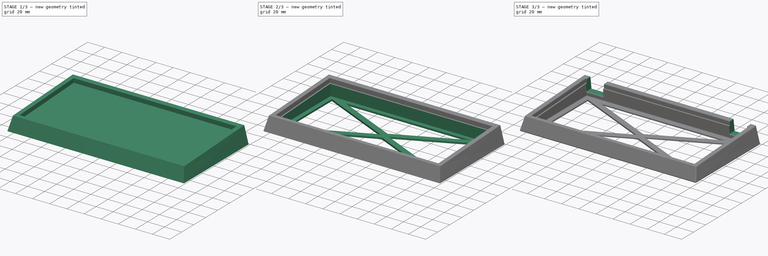
[diagram: build sequence overview — one tinted view per stage of 3, left to right]
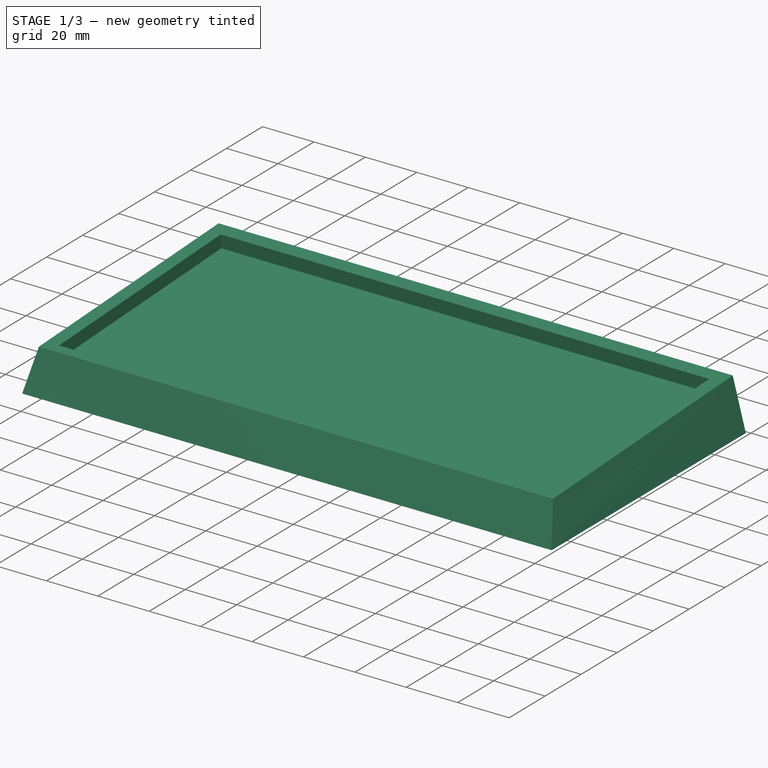
[diagram: stage 1 of 3 — iso view after this stage's code; geometry added in this stage tinted green]
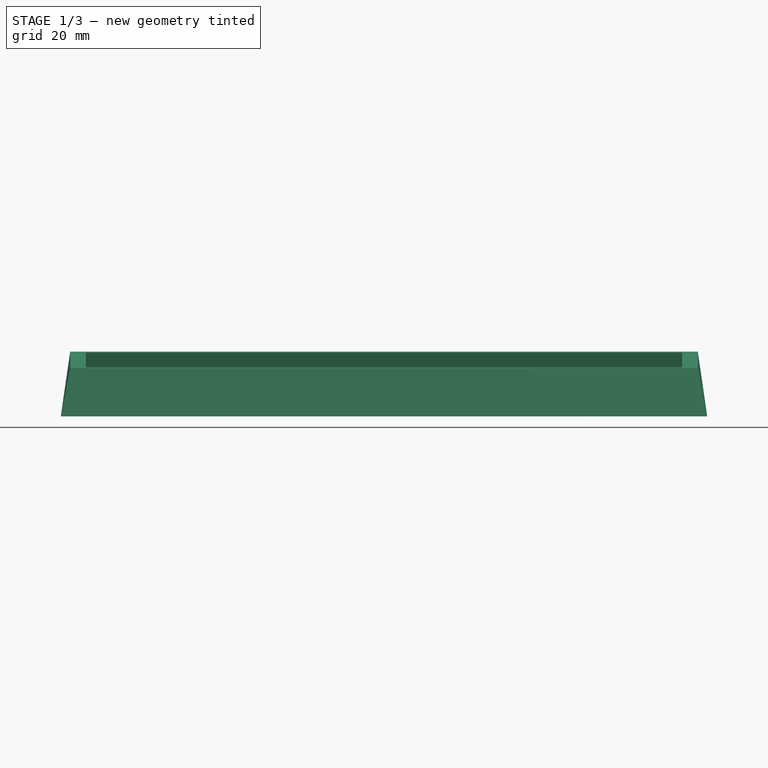
[diagram: stage 1 of 3 — front view after this stage's code; geometry added in this stage tinted green]
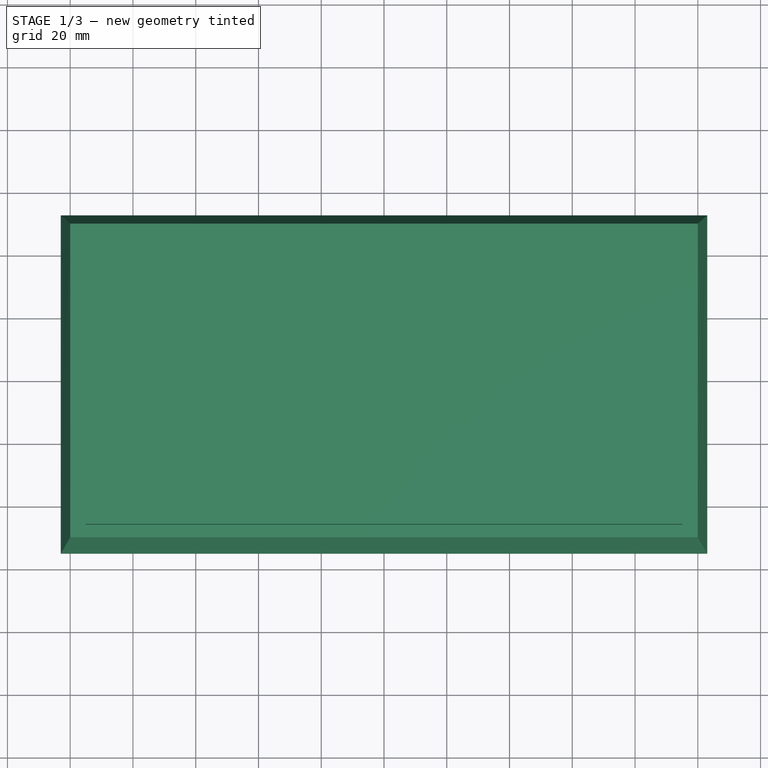
[diagram: stage 1 of 3 — top view after this stage's code; geometry added in this stage tinted green]
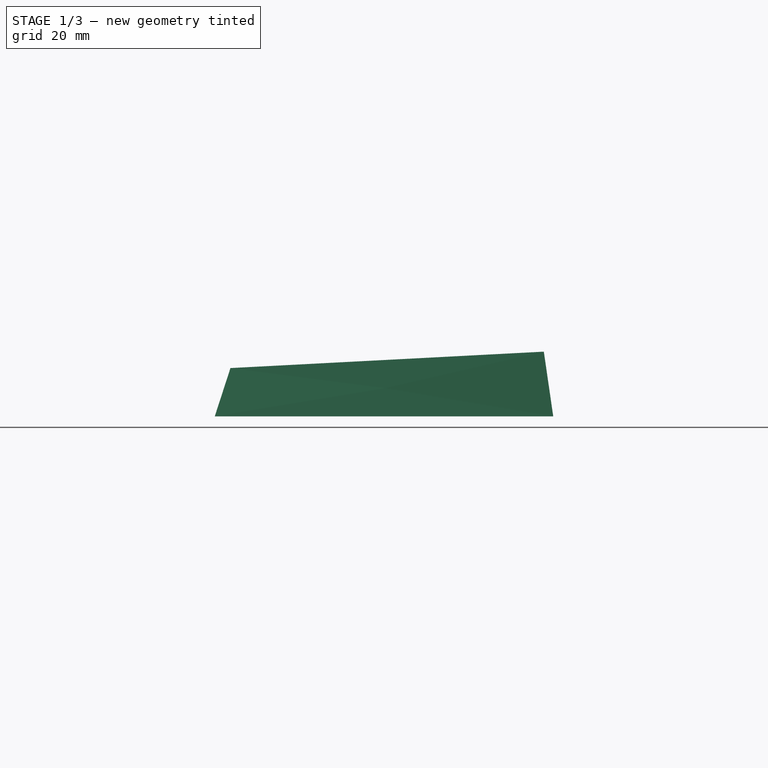
[diagram: stage 1 of 3 — right view after this stage's code; geometry added in this stage tinted green]
FCSTD DOCUMENT  (FreeCAD 0.20R)
Label: keyb-case
License: All rights reserved
LicenseURL: http://en.wikipedia.org/wiki/All_rights_reserved
objects: Sketcher::SketchObject×6, PartDesign::Pocket×4, PartDesign::AdditiveLoft×1, PartDesign::Fillet×1, PartDesign::Body×1
note: 19 computed .brp shape members not serialized (recipe doc carries the construction recipe); baked Part::Feature solids carry a one-line shape summary decoded from their .brp

FEATURE [Sketcher::SketchObject] Sketch
  AttachmentOffset = pos=(0,0,18) rot=(1,0,0;0.05236rad)
  FullyConstrained = true
  MapMode = 5
  Placement = pos=(0,0,18) rot=(1,0,0;0.05236rad)
  Support = -> [XY_Plane]
  sketch-geometry (4):
    g0: LineSegment StartX=-100 StartY=50 StartZ=0 EndX=100 EndY=50 EndZ=0
    g1: LineSegment StartX=100 StartY=50 StartZ=0 EndX=100 EndY=-50 EndZ=0
    g2: LineSegment StartX=100 StartY=-50 StartZ=0 EndX=-100 EndY=-50 EndZ=0
    g3: LineSegment StartX=-100 StartY=-50 StartZ=0 EndX=-100 EndY=50 EndZ=0
  constraints (10):
    c: Coincident(g0,g1)
    c: Coincident(g1,g2)
    c: Coincident(g2,g3)
    c: Coincident(g3,g0)
    c: Horizontal(g2)
    c: Vertical(g1)
    c: Symmetric(g0,g0,g-2)
    c: Symmetric(g0,g2,g-1)
    c: DistanceX(g0,g0) = 200
    c: DistanceY(g3,g3) = 100
FEATURE [Sketcher::SketchObject] Sketch001
  ExternalGeometry = -> [Sketch]
  FullyConstrained = true
  MapMode = 5
  Support = -> [XY_Plane]
  sketch-geometry (4):
    g0: LineSegment StartX=-103 StartY=52.9315 StartZ=0 EndX=103 EndY=52.9315 EndZ=0
    g1: LineSegment StartX=103 StartY=52.9315 StartZ=0 EndX=103 EndY=-54.9315 EndZ=0
    g2: LineSegment StartX=103 StartY=-54.9315 StartZ=0 EndX=-103 EndY=-54.9315 EndZ=0
    g3: LineSegment StartX=-103 StartY=-54.9315 StartZ=0 EndX=-103 EndY=52.9315 EndZ=0
  constraints (12):
    c: Coincident(g0,g1)
    c: Coincident(g1,g2)
    c: Coincident(g2,g3)
    c: Coincident(g3,g0)
    c: Horizontal(g0)
    c: Horizontal(g2)
    c: Vertical(g1)
    c: Vertical(g3)
    c: DistanceY(g-3,g0) = 3
    c: DistanceX(g-3,g0) = 3
    c: DistanceX(g0,g-3) = 3
    c: DistanceY(g1,g-4) = 5
FEATURE [PartDesign::AdditiveLoft] AdditiveLoft
  Closed = false
  Profile = -> Sketch
  Ruled = false
  Sections = -> [Sketch001]
FEATURE [Sketcher::SketchObject] Sketch002
  ExternalGeometry = -> [AdditiveLoft]
  FullyConstrained = true
  MapMode = 5
  Placement = pos=(0,-0.940756,17.9507) rot=(1,0,0;0.05236rad)
  Support = -> [AdditiveLoft]
  sketch-geometry (4):
    g0: LineSegment StartX=-95 StartY=45 StartZ=0 EndX=95 EndY=45 EndZ=0
    g1: LineSegment StartX=95 StartY=45 StartZ=0 EndX=95 EndY=-45 EndZ=0
    g2: LineSegment StartX=95 StartY=-45 StartZ=0 EndX=-95 EndY=-45 EndZ=0
    g3: LineSegment StartX=-95 StartY=-45 StartZ=0 EndX=-95 EndY=45 EndZ=0
  constraints (10):
    c: Coincident(g0,g1)
    c: Coincident(g1,g2)
    c: Coincident(g2,g3)
    c: Coincident(g3,g0)
    c: Horizontal(g2)
    c: Vertical(g1)
    c: Symmetric(g0,g0,g-2)
    c: Symmetric(g0,g2,g-1)
    c: Distance(g0) = 190
    c: Distance(g3) = 90
FEATURE [PartDesign::Pocket] Pocket
  BaseFeature = -> AdditiveLoft
  Direction = (0,0.052336,-0.99863)
  Length = 5
  Length2 = 5
  Profile = -> Sketch002
  ReferenceAxis = -> Sketch002 [N_Axis]
  Type = 0
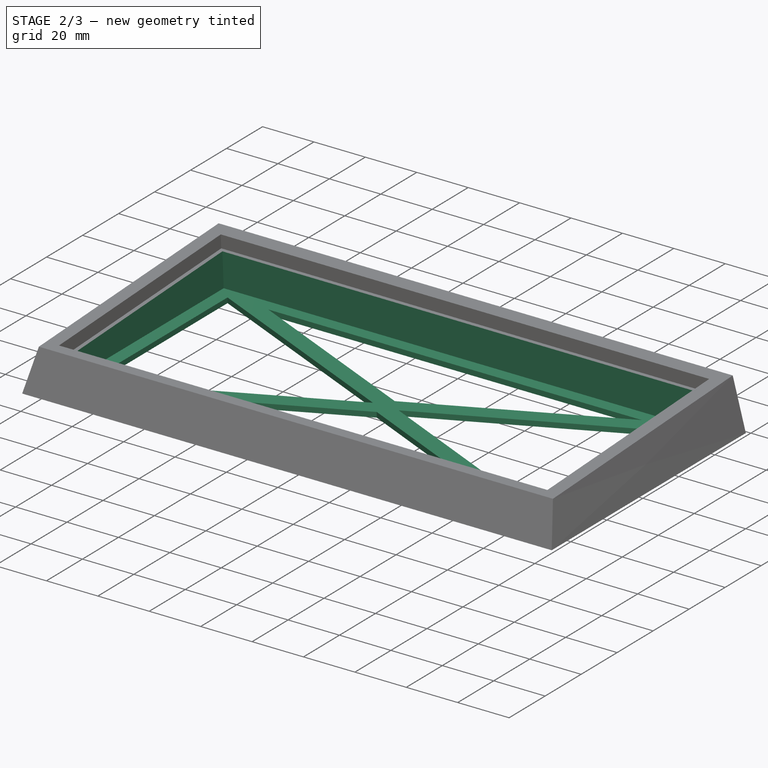
[diagram: stage 2 of 3 — iso view after this stage's code; geometry added in this stage tinted green]
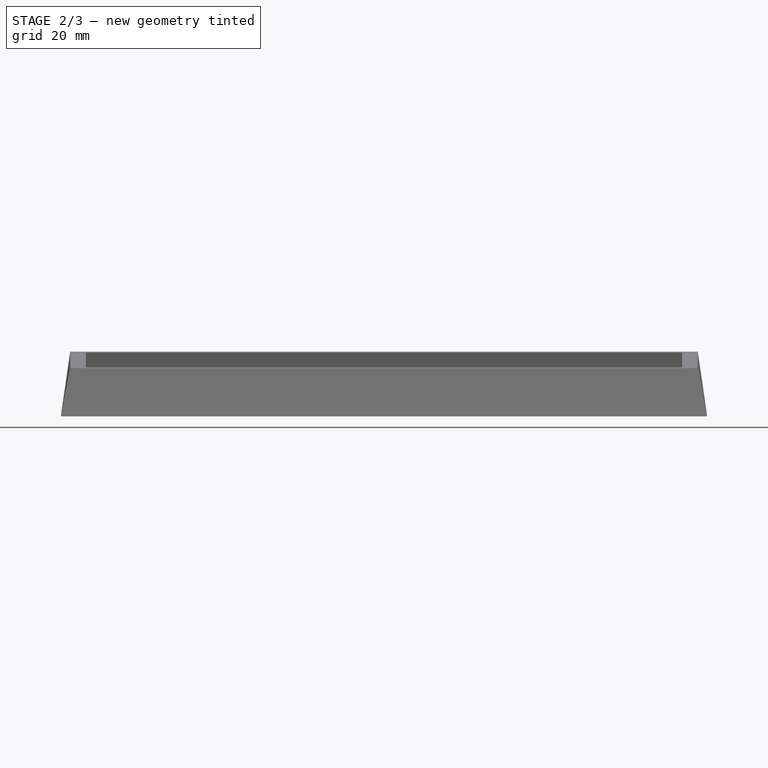
[diagram: stage 2 of 3 — front view after this stage's code; geometry added in this stage tinted green]
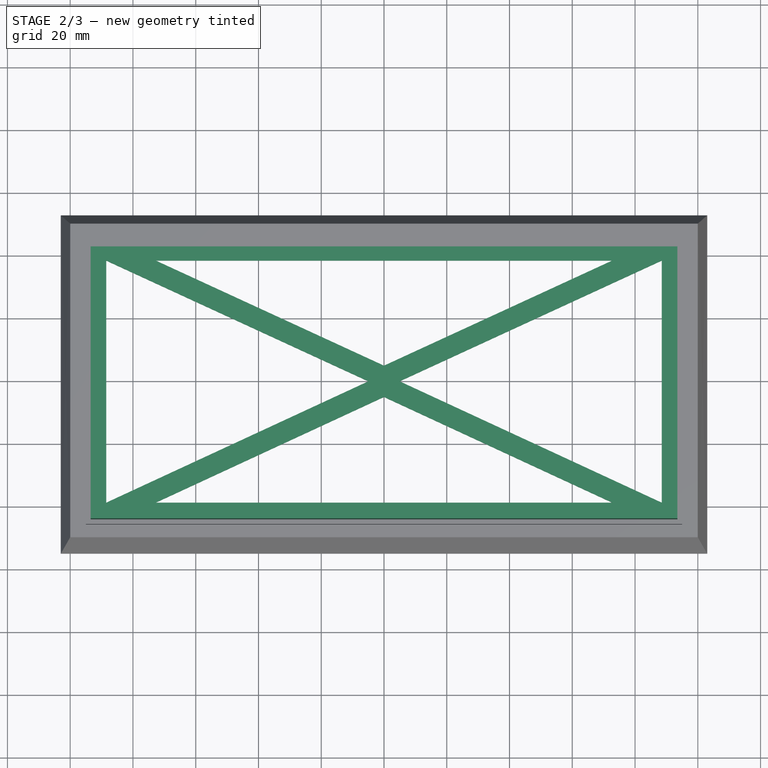
[diagram: stage 2 of 3 — top view after this stage's code; geometry added in this stage tinted green]
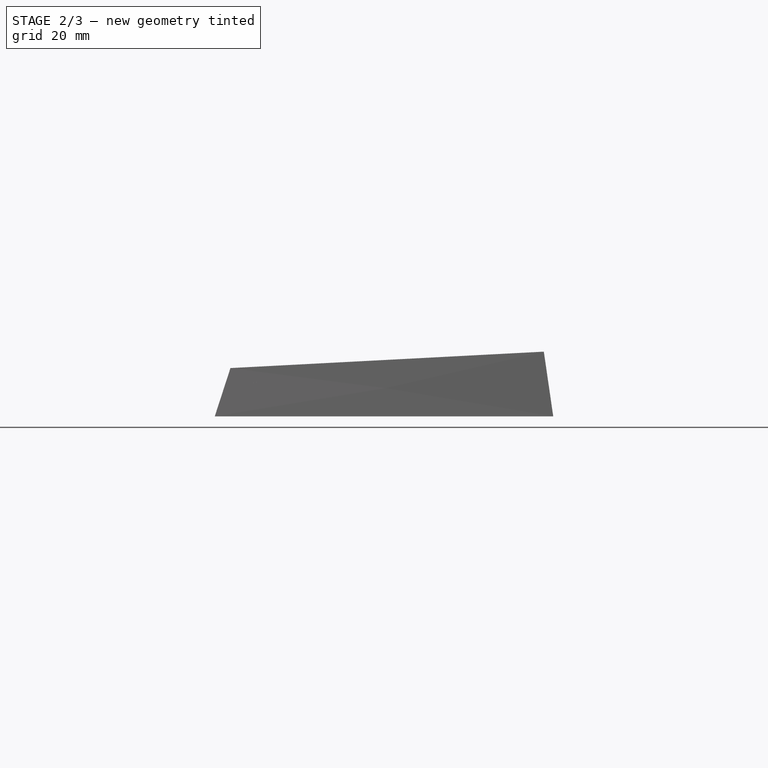
[diagram: stage 2 of 3 — right view after this stage's code; geometry added in this stage tinted green]
FEATURE [Sketcher::SketchObject] Sketch003
  ExternalGeometry = -> [Pocket]
  FullyConstrained = true
  MapMode = 5
  Placement = pos=(0,-0.679076,12.9575) rot=(1,0,0;0.05236rad)
  Support = -> [Pocket]
  sketch-geometry (4):
    g0: LineSegment StartX=-93.5 StartY=43.5 StartZ=0 EndX=93.5 EndY=43.5 EndZ=0
    g1: LineSegment StartX=93.5 StartY=43.5 StartZ=0 EndX=93.5 EndY=-43.5 EndZ=0
    g2: LineSegment StartX=93.5 StartY=-43.5 StartZ=0 EndX=-93.5 EndY=-43.5 EndZ=0
    g3: LineSegment StartX=-93.5 StartY=-43.5 StartZ=0 EndX=-93.5 EndY=43.5 EndZ=0
  constraints (12):
    c: Coincident(g0,g1)
    c: Coincident(g1,g2)
    c: Coincident(g2,g3)
    c: Coincident(g3,g0)
    c: Horizontal(g0)
    c: Horizontal(g2)
    c: Vertical(g1)
    c: Vertical(g3)
    c: DistanceY(g0,g-3) = 1.5
    c: DistanceX(g0,g-3) = 1.5
    c: DistanceX(g-4,g2) = 1.5
    c: DistanceY(g-4,g2) = 1.5
FEATURE [PartDesign::Pocket] Pocket001
  BaseFeature = -> Pocket
  Direction = (0,0.052336,-0.99863)
  Length = 0
  Length2 = 5
  Offset = -2
  Profile = -> Sketch003
  ReferenceAxis = -> Sketch003 [N_Axis]
  Type = 3
  UpToFace = -> Pocket [Face10]
FEATURE [Sketcher::SketchObject] Sketch004
  ExternalGeometry = -> [Pocket001]
  FullyConstrained = true
  MapMode = 5
  Placement = pos=(0,0,1.99726) rot=(0,0,1;0rad)
  Support = -> [Pocket001]
  sketch-geometry (12):
    g0: LineSegment StartX=-72.6432 StartY=38.455 StartZ=0 EndX=0 EndY=5 EndZ=0
    g1: LineSegment StartX=0 StartY=5 StartZ=0 EndX=72.6432 EndY=38.455 EndZ=0
    g2: LineSegment StartX=72.6432 StartY=38.455 StartZ=0 EndX=-72.6432 EndY=38.455 EndZ=0
    g3: LineSegment StartX=0 StartY=-5 StartZ=0 EndX=-72.7019 EndY=-38.6644 EndZ=0
    g4: LineSegment StartX=-72.7019 StartY=-38.6644 StartZ=0 EndX=72.7019 EndY=-38.6644 EndZ=0
    g5: LineSegment StartX=72.7019 StartY=-38.6644 StartZ=0 EndX=0 EndY=-5 EndZ=0
    g6: LineSegment StartX=5 StartY=0 StartZ=0 EndX=88.5 EndY=38.455 EndZ=0
    g7: LineSegment StartX=88.5 StartY=38.455 StartZ=0 EndX=88.5 EndY=-38.6644 EndZ=0
    g8: LineSegment StartX=88.5 StartY=-38.6644 StartZ=0 EndX=5 EndY=0 EndZ=0
    g9: LineSegment StartX=-5 StartY=0 StartZ=0 EndX=-88.5 EndY=38.455 EndZ=0
    g10: LineSegment StartX=-88.5 StartY=38.455 StartZ=0 EndX=-88.5 EndY=-38.6644 EndZ=0
    g11: LineSegment StartX=-88.5 StartY=-38.6644 StartZ=0 EndX=-5 EndY=0 EndZ=0
  constraints (34):
    c: PointOnObject(g0,g-2)
    c: Coincident(g0,g1)
    c: Coincident(g1,g2)
    c: Coincident(g2,g0)
    c: Horizontal(g2)
    c: Coincident(g3,g4)
    c: Horizontal(g4)
    c: Coincident(g4,g5)
    c: Coincident(g5,g3)
    c: PointOnObject(g6,g-1)
    c: Coincident(g6,g7)
    c: Vertical(g7)
    c: Coincident(g7,g8)
    c: Coincident(g8,g6)
    c: Coincident(g9,g10)
    c: Vertical(g10)
    c: Coincident(g10,g11)
    c: Coincident(g11,g9)
    c: Symmetric(g0,g3,g-1)
    c: DistanceY(g3,g0) = 10
    c: Symmetric(g9,g6,g-1)
    c: DistanceX(g9,g6) = 10
    c: Horizontal(g9,g0)
    c: Horizontal(g6,g1)
    c: Horizontal(g10,g3)
    c: Horizontal(g4,g7)
    c: Parallel(g0,g9)
    c: Parallel(g8,g5)
    c: Parallel(g3,g11)
    c: Parallel(g6,g1)
    c: DistanceY(g9,g-4) = 5
    c: DistanceX(g-4,g9) = 5
    c: DistanceX(g6,g-4) = 5
    c: DistanceY(g-3,g7) = 5
FEATURE [PartDesign::Pocket] Pocket002
  BaseFeature = -> Pocket001
  Direction = (0,0,-1)
  Length = 5
  Length2 = 5
  Profile = -> Sketch004
  ReferenceAxis = -> Sketch004 [N_Axis]
  Type = 1
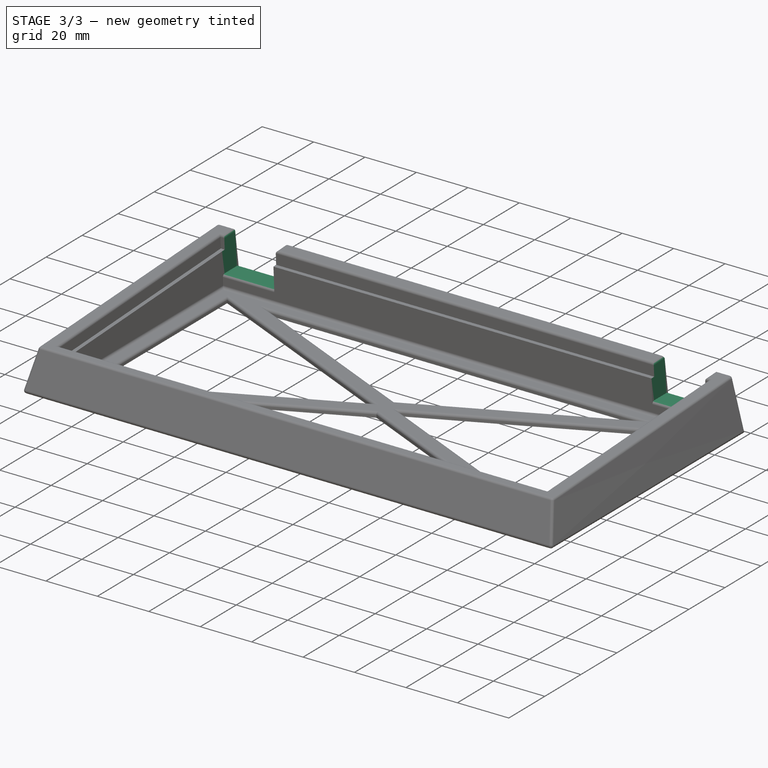
[diagram: stage 3 of 3 — iso view after this stage's code; geometry added in this stage tinted green]
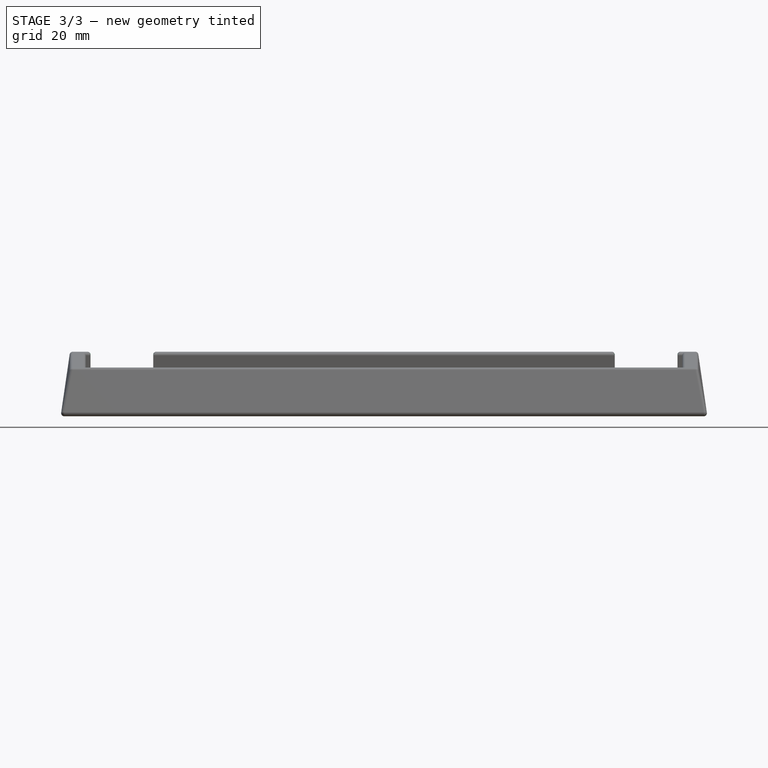
[diagram: stage 3 of 3 — front view after this stage's code; geometry added in this stage tinted green]
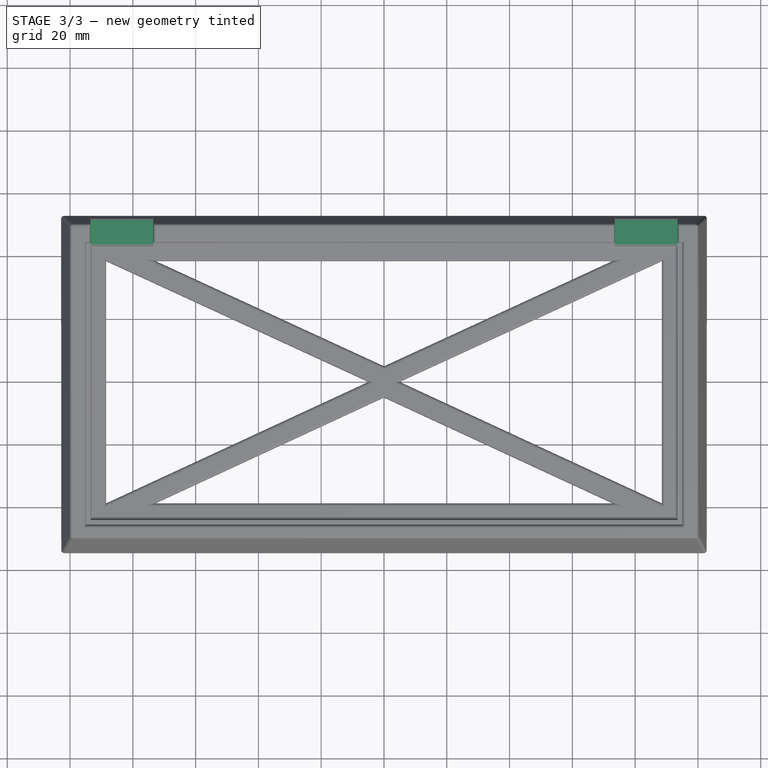
[diagram: stage 3 of 3 — top view after this stage's code; geometry added in this stage tinted green]
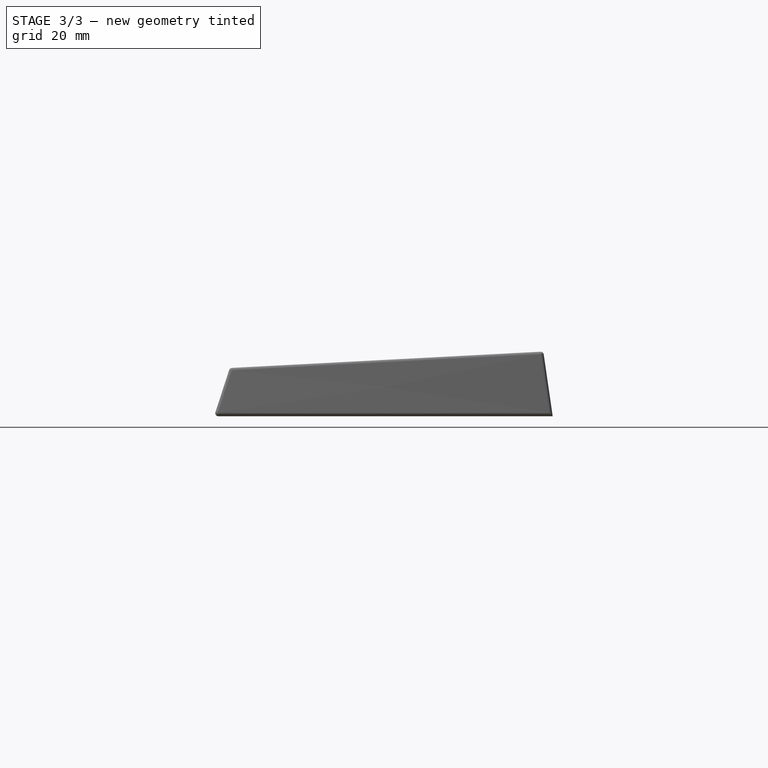
[diagram: stage 3 of 3 — right view after this stage's code; geometry added in this stage tinted green]
FEATURE [Sketcher::SketchObject] Sketch005
  ExternalGeometry = -> [Pocket002]
  FullyConstrained = true
  MapMode = 5
  Placement = pos=(0,-0.940756,17.9507) rot=(1,0,0;0.05236rad)
  Support = -> [Pocket002]
  sketch-geometry (8):
    g0: LineSegment StartX=-93.5 StartY=43.5 StartZ=0 EndX=-73.5 EndY=43.5 EndZ=0
    g1: LineSegment StartX=-73.5 StartY=43.5 StartZ=0 EndX=-73.5 EndY=52.8589 EndZ=0
    g2: LineSegment StartX=-73.5 StartY=52.8589 StartZ=0 EndX=-93.5 EndY=52.8589 EndZ=0
    g3: LineSegment StartX=-93.5 StartY=52.8589 StartZ=0 EndX=-93.5 EndY=43.5 EndZ=0
    g4: LineSegment StartX=93.5 StartY=43.5 StartZ=0 EndX=73.5 EndY=43.5 EndZ=0
    g5: LineSegment StartX=73.5 StartY=43.5 StartZ=0 EndX=73.5 EndY=52.8589 EndZ=0
    g6: LineSegment StartX=73.5 StartY=52.8589 StartZ=0 EndX=93.5 EndY=52.8589 EndZ=0
    g7: LineSegment StartX=93.5 StartY=52.8589 StartZ=0 EndX=93.5 EndY=43.5 EndZ=0
  constraints (22):
    c: Coincident(g0,g1)
    c: Coincident(g1,g2)
    c: Coincident(g2,g3)
    c: Coincident(g3,g0)
    c: Horizontal(g0)
    c: Horizontal(g2)
    c: Vertical(g1)
    c: Vertical(g3)
    c: Coincident(g0,g-3)
    c: PointOnObject(g1,g-4)
    c: DistanceX(g2,g2) = 20
    c: Coincident(g4,g5)
    c: Coincident(g5,g6)
    c: Coincident(g6,g7)
    c: Coincident(g7,g4)
    c: Horizontal(g4)
    c: Horizontal(g6)
    c: Vertical(g5)
    c: Vertical(g7)
    c: Coincident(g4,g-3)
    c: PointOnObject(g5,g-4)
    c: DistanceX(g6,g6) = 20
FEATURE [PartDesign::Pocket] Pocket003
  BaseFeature = -> Pocket002
  Direction = (0,0.052336,-0.99863)
  Length = 0
  Length2 = 5
  Offset = -5
  Profile = -> Sketch005
  ReferenceAxis = -> Sketch005 [N_Axis]
  Type = 3
  UpToFace = -> Pocket002 [Face28]
FEATURE [PartDesign::Fillet] Fillet
  Base = -> Pocket003 [Face11,Face10,Face12,Face16,Face1,Edge69,Edge21,Edge58,Edge17,Face38]
  BaseFeature = -> Pocket003
  Radius = 1
  SupportTransform = false
  UseAllEdges = false
FEATURE [PartDesign::Body] Body
  Group = -> [Sketch,Sketch001,AdditiveLoft,Sketch002,Pocket,Sketch003,Pocket001,Sketch004,Pocket002,Sketch005,Pocket003,Fillet]
  Origin = -> Origin
  Tip = -> Fillet
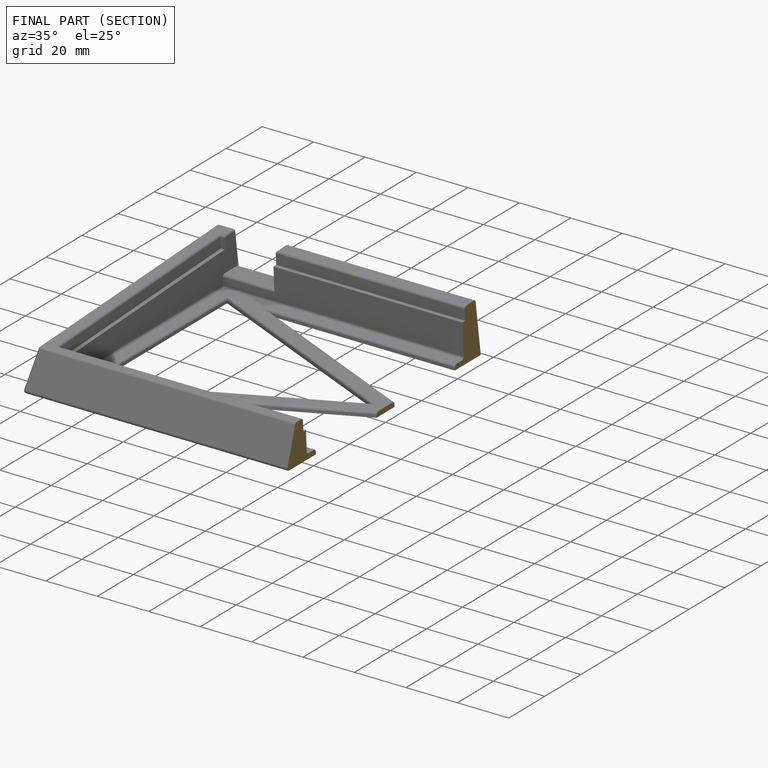
[diagram: finished part — half-section view (interior)]
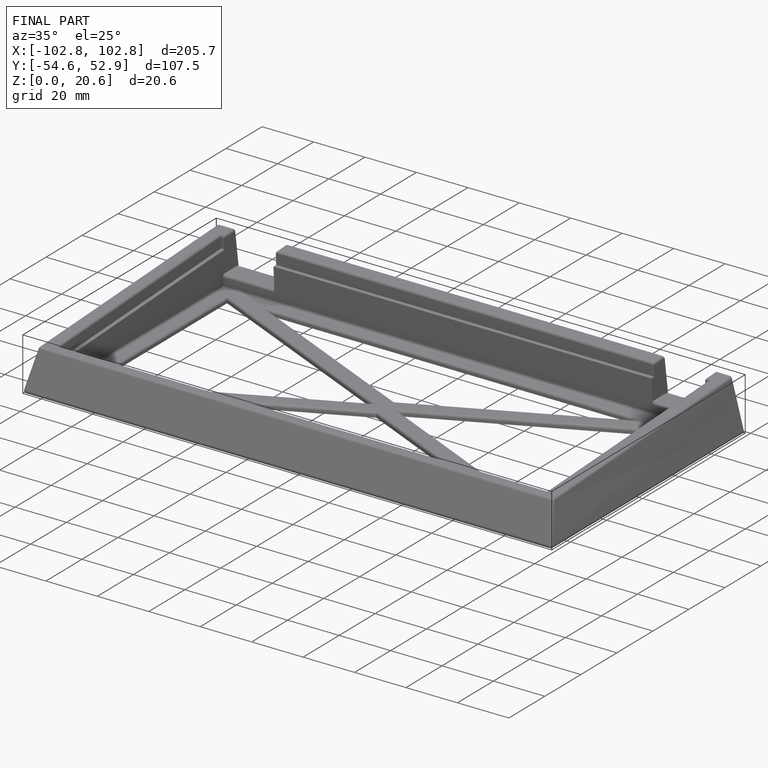
[diagram: finished part — iso view with bounding-box wireframe]
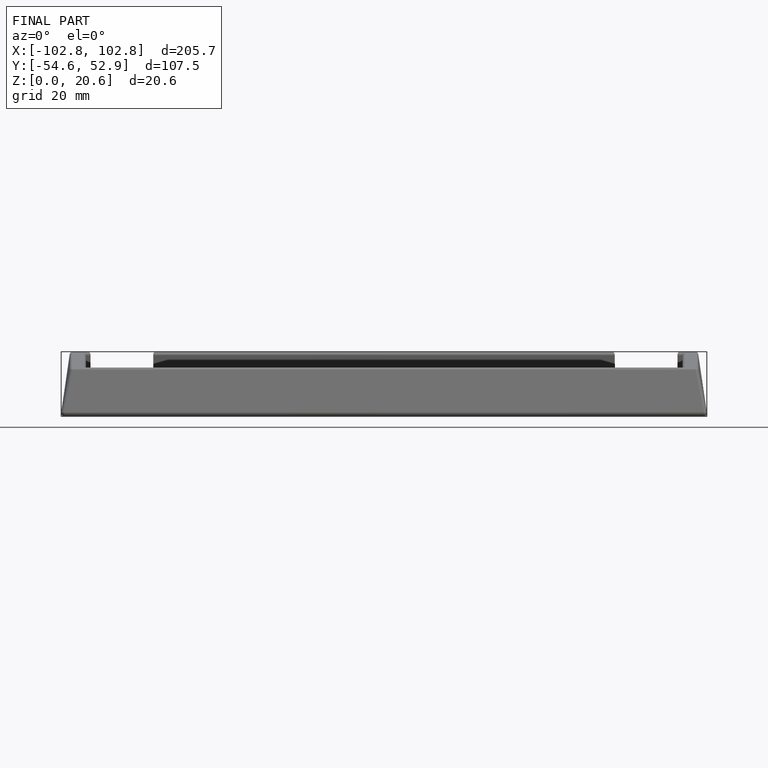
[diagram: finished part — front view with bounding-box wireframe]
